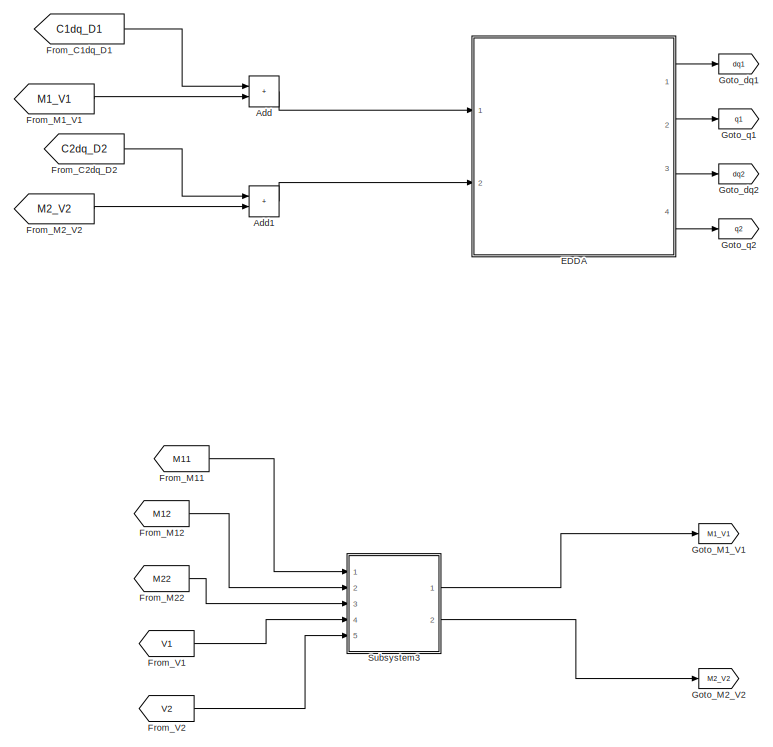
[diagram: root canvas - part 1/3, top left region]
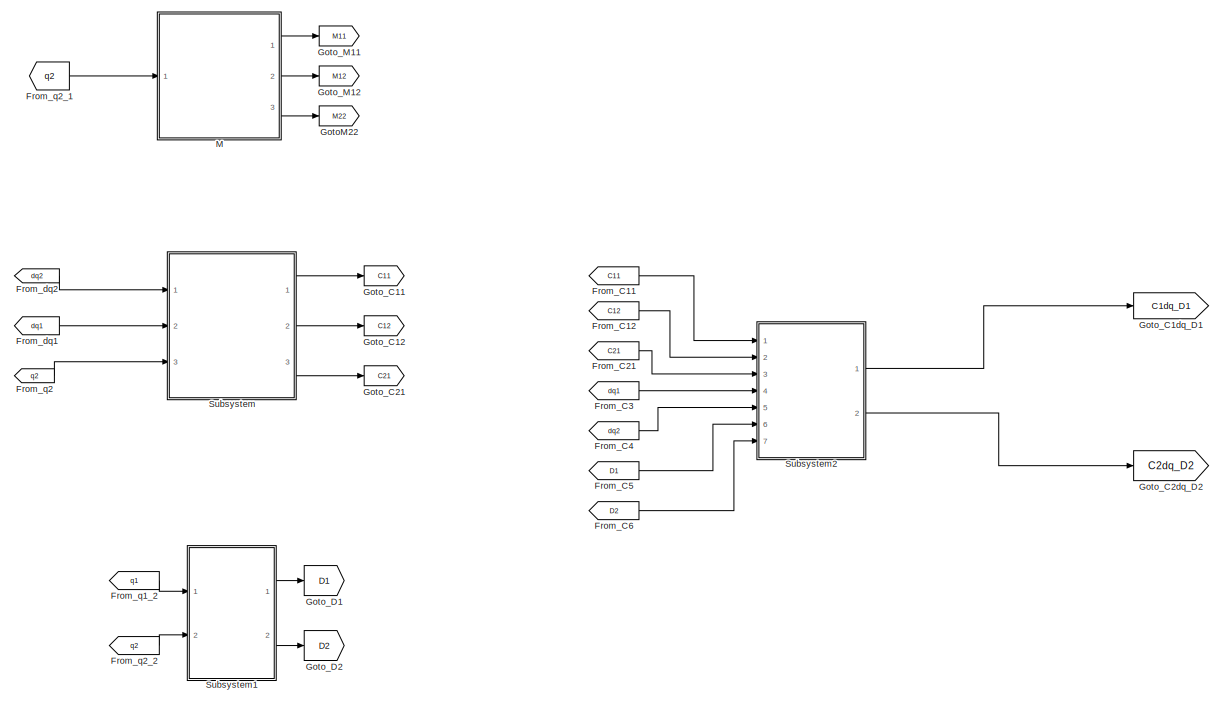
[diagram: root canvas - part 2/3, top right region]
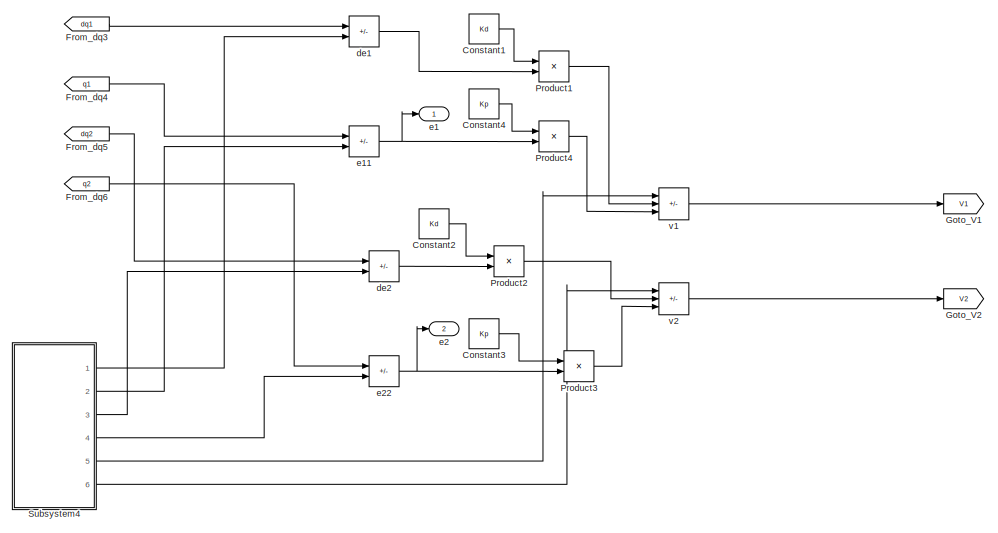
[diagram: root canvas - part 3/3, bottom center region]
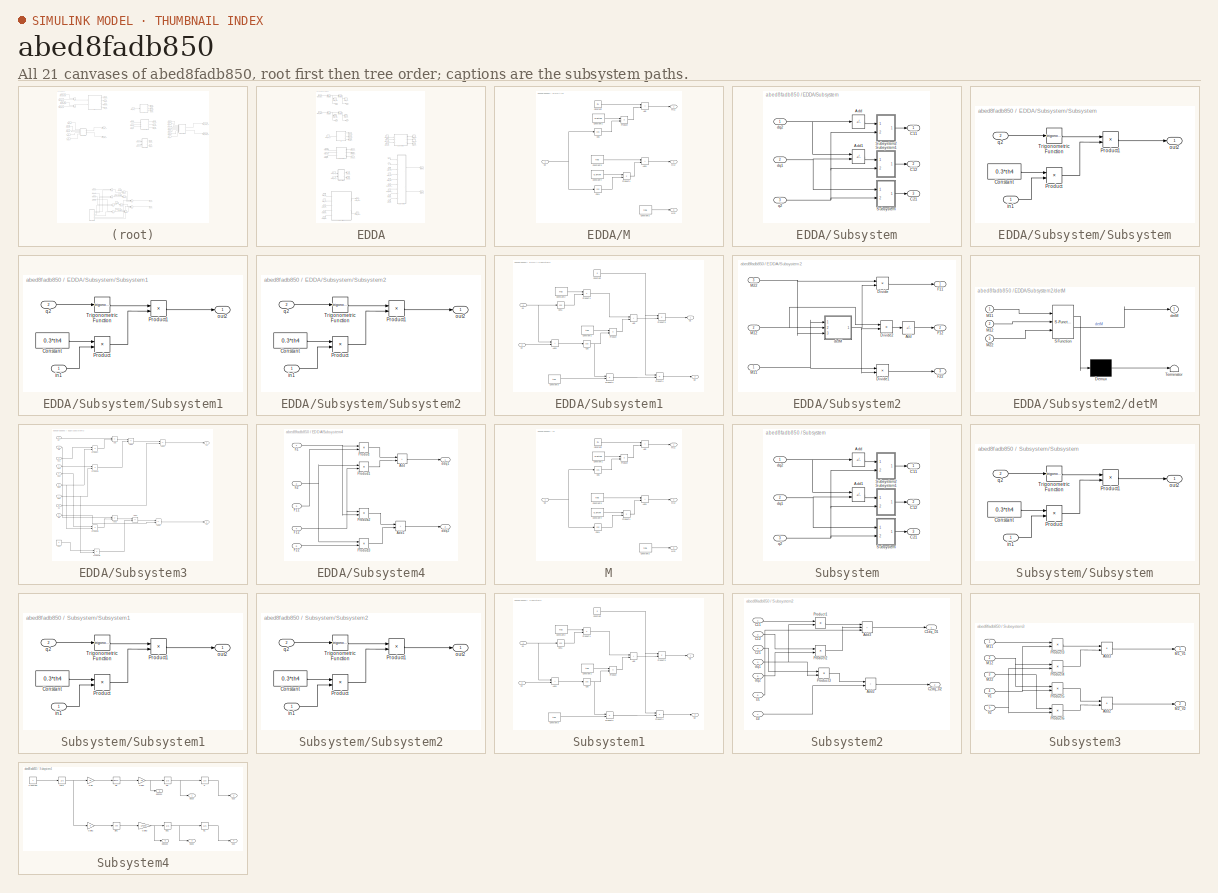
[diagram: thumbnail index - all 21 canvases of the model, root first then tree order]
MODEL slx_abed8fadb850
KIND model
CONFIG AbsTol = auto
CONFIG EnableMultiTasking = off
CONFIG FixedStep = 0.05
CONFIG MaxStep = auto
CONFIG MinStep = auto
CONFIG RelTol = 1e-10
CONFIG SampleTimeConstraint = Unconstrained
CONFIG Solver = ode113
CONFIG SolverName = ode113
CONFIG StartTime = 0.0
CONFIG StopTime = time
BLOCK [Sum] Add
  IconShape = rectangular
  Ports = [2, 1]
BLOCK [Sum] Add1
  IconShape = rectangular
  Ports = [2, 1]
BLOCK [Constant] Constant1
  Value = Kd
BLOCK [Constant] Constant2
  Value = Kd
BLOCK [Constant] Constant3
  Value = Kp
BLOCK [Constant] Constant4
  Value = Kp
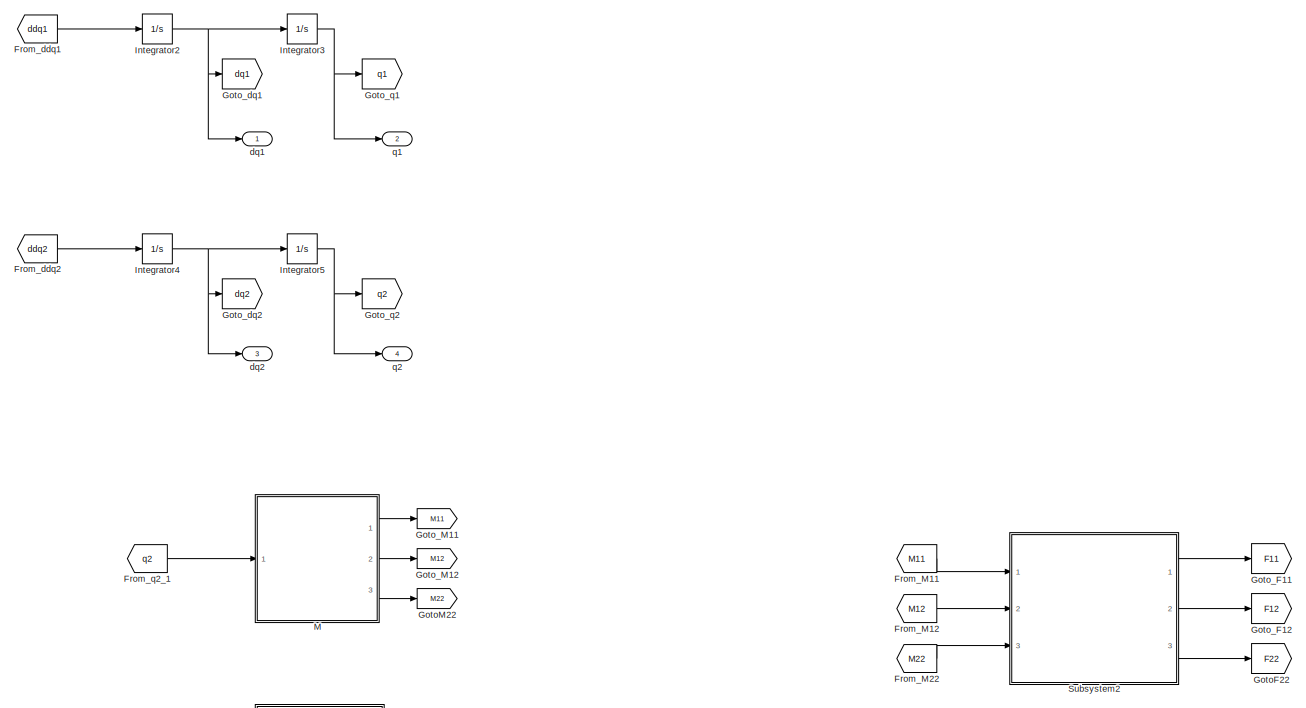
[diagram: EDDA - part 1/3, full width, top band]
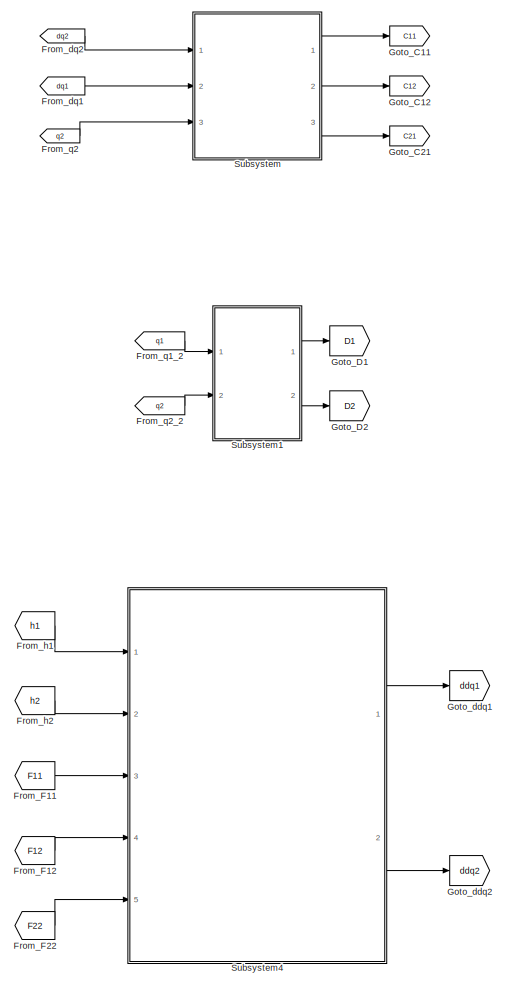
[diagram: EDDA - part 2/3, bottom left region]
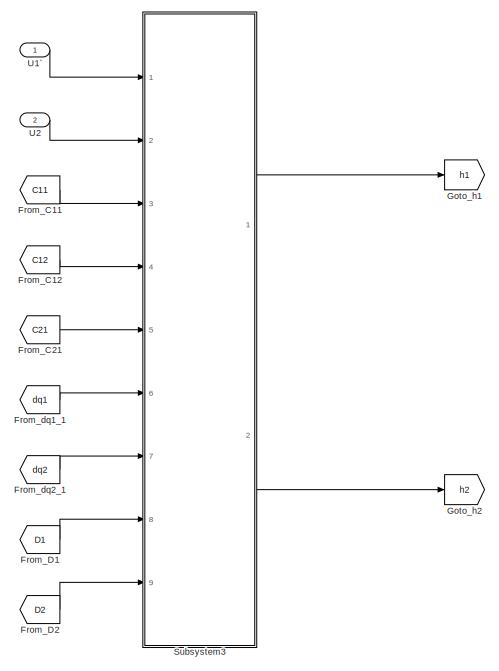
[diagram: EDDA - part 3/3, bottom right region]
BLOCK [SubSystem] EDDA
  Ports = [2, 4]
  RequestExecContextInheritance = off
BLOCK [From] EDDA/From_C11
  GotoTag = C11
BLOCK [From] EDDA/From_C12
  GotoTag = C12
BLOCK [From] EDDA/From_C21
  GotoTag = C21
BLOCK [From] EDDA/From_D1
  GotoTag = D1
BLOCK [From] EDDA/From_D2
  GotoTag = D2
BLOCK [From] EDDA/From_F11
  GotoTag = F11
BLOCK [From] EDDA/From_F12
  GotoTag = F12
BLOCK [From] EDDA/From_F22
  GotoTag = F22
BLOCK [From] EDDA/From_M11
  GotoTag = M11
BLOCK [From] EDDA/From_M12
  GotoTag = M12
BLOCK [From] EDDA/From_M22
  GotoTag = M22
BLOCK [From] EDDA/From_ddq1
  GotoTag = ddq1
BLOCK [From] EDDA/From_ddq2
  GotoTag = ddq2
BLOCK [From] EDDA/From_dq1
  GotoTag = dq1
BLOCK [From] EDDA/From_dq1_1
  GotoTag = dq1
BLOCK [From] EDDA/From_dq2
  GotoTag = dq2
BLOCK [From] EDDA/From_dq2_1
  GotoTag = dq2
BLOCK [From] EDDA/From_h1
  GotoTag = h1
BLOCK [From] EDDA/From_h2
  GotoTag = h2
BLOCK [From] EDDA/From_q1_2
  GotoTag = q1
BLOCK [From] EDDA/From_q2
  GotoTag = q2
BLOCK [From] EDDA/From_q2_1
  GotoTag = q2
BLOCK [From] EDDA/From_q2_2
  GotoTag = q2
BLOCK [Goto] EDDA/GotoF22
  GotoTag = F22
BLOCK [Goto] EDDA/GotoM22
  GotoTag = M22
BLOCK [Goto] EDDA/Goto_C11
  GotoTag = C11
BLOCK [Goto] EDDA/Goto_C12
  GotoTag = C12
BLOCK [Goto] EDDA/Goto_C21
  GotoTag = C21
BLOCK [Goto] EDDA/Goto_D1
  GotoTag = D1
BLOCK [Goto] EDDA/Goto_D2
  GotoTag = D2
BLOCK [Goto] EDDA/Goto_F11
  GotoTag = F11
BLOCK [Goto] EDDA/Goto_F12
  GotoTag = F12
BLOCK [Goto] EDDA/Goto_M11
  GotoTag = M11
BLOCK [Goto] EDDA/Goto_M12
  GotoTag = M12
BLOCK [Goto] EDDA/Goto_ddq1
  GotoTag = ddq1
BLOCK [Goto] EDDA/Goto_ddq2
  GotoTag = ddq2
BLOCK [Goto] EDDA/Goto_dq1
  GotoTag = dq1
BLOCK [Goto] EDDA/Goto_dq2
  GotoTag = dq2
BLOCK [Goto] EDDA/Goto_h1
  GotoTag = h1
BLOCK [Goto] EDDA/Goto_h2
  GotoTag = h2
BLOCK [Goto] EDDA/Goto_q1
  GotoTag = q1
BLOCK [Goto] EDDA/Goto_q2
  GotoTag = q2
BLOCK [Integrator] EDDA/Integrator2
  Ports = [1, 1]
BLOCK [Integrator] EDDA/Integrator3
  Ports = [1, 1]
BLOCK [Integrator] EDDA/Integrator4
  Ports = [1, 1]
BLOCK [Integrator] EDDA/Integrator5
  Ports = [1, 1]
BLOCK [SubSystem] EDDA/M
  Ports = [1, 3]
  RequestExecContextInheritance = off
BLOCK [Sum] EDDA/M/Add
  IconShape = rectangular
  Ports = [2, 1]
BLOCK [Sum] EDDA/M/Add1
  IconShape = rectangular
  Ports = [2, 1]
BLOCK [Constant] EDDA/M/Constant
  Value = th1
BLOCK [Constant] EDDA/M/Constant1
  Value = 0.6*th4
BLOCK [Constant] EDDA/M/Constant2
  Value = th3
BLOCK [Constant] EDDA/M/Constant3
  Value = th3
BLOCK [Constant] EDDA/M/Constant4
  Value = 0.3*th4
BLOCK [Trigonometry] EDDA/M/Cos
  Operator = cos
  Ports = [1, 1]
BLOCK [Trigonometry] EDDA/M/Cos1
  Operator = cos
  Ports = [1, 1]
BLOCK [Outport] EDDA/M/M11
BLOCK [Outport] EDDA/M/M12
  Port = 2
BLOCK [Outport] EDDA/M/M22
  Port = 3
BLOCK [Product] EDDA/M/Product
  Ports = [2, 1]
BLOCK [Product] EDDA/M/Product1
  Ports = [2, 1]
BLOCK [Inport] EDDA/M/q2
BLOCK [SubSystem] EDDA/Subsystem
  Ports = [3, 3]
  RequestExecContextInheritance = off
BLOCK [Sum] EDDA/Subsystem/Add
  IconShape = rectangular
  Inputs = -
  Ports = [1, 1]
BLOCK [Sum] EDDA/Subsystem/Add1
  IconShape = rectangular
  Inputs = --
  Ports = [2, 1]
BLOCK [Outport] EDDA/Subsystem/C11
BLOCK [Outport] EDDA/Subsystem/C12
  Port = 2
BLOCK [Outport] EDDA/Subsystem/C21
  Port = 3
BLOCK [SubSystem] EDDA/Subsystem/Subsystem
  Ports = [2, 1]
  RequestExecContextInheritance = off
BLOCK [Constant] EDDA/Subsystem/Subsystem/Constant
  Value = 0.3*th4
BLOCK [Product] EDDA/Subsystem/Subsystem/Product
  Ports = [2, 1]
BLOCK [Product] EDDA/Subsystem/Subsystem/Product1
  Ports = [2, 1]
BLOCK [Trigonometry] EDDA/Subsystem/Subsystem/Trigonometric Function
  Ports = [1, 1]
BLOCK [Inport] EDDA/Subsystem/Subsystem/in1
BLOCK [Outport] EDDA/Subsystem/Subsystem/out2
BLOCK [Inport] EDDA/Subsystem/Subsystem/q2
  Port = 2
BLOCK [SubSystem] EDDA/Subsystem/Subsystem1
  Ports = [2, 1]
  RequestExecContextInheritance = off
BLOCK [Constant] EDDA/Subsystem/Subsystem1/Constant
  Value = 0.3*th4
BLOCK [Product] EDDA/Subsystem/Subsystem1/Product
  Ports = [2, 1]
BLOCK [Product] EDDA/Subsystem/Subsystem1/Product1
  Ports = [2, 1]
BLOCK [Trigonometry] EDDA/Subsystem/Subsystem1/Trigonometric Function
  Ports = [1, 1]
BLOCK [Inport] EDDA/Subsystem/Subsystem1/in1
BLOCK [Outport] EDDA/Subsystem/Subsystem1/out2
BLOCK [Inport] EDDA/Subsystem/Subsystem1/q2
  Port = 2
BLOCK [SubSystem] EDDA/Subsystem/Subsystem2
  Ports = [2, 1]
  RequestExecContextInheritance = off
BLOCK [Constant] EDDA/Subsystem/Subsystem2/Constant
  Value = 0.3*th4
BLOCK [Product] EDDA/Subsystem/Subsystem2/Product
  Ports = [2, 1]
BLOCK [Product] EDDA/Subsystem/Subsystem2/Product1
  Ports = [2, 1]
BLOCK [Trigonometry] EDDA/Subsystem/Subsystem2/Trigonometric Function
  Ports = [1, 1]
BLOCK [Inport] EDDA/Subsystem/Subsystem2/in1
BLOCK [Outport] EDDA/Subsystem/Subsystem2/out2
BLOCK [Inport] EDDA/Subsystem/Subsystem2/q2
  Port = 2
BLOCK [Inport] EDDA/Subsystem/dq1
  Port = 2
BLOCK [Inport] EDDA/Subsystem/dq2
BLOCK [Inport] EDDA/Subsystem/q2
  Port = 3
BLOCK [SubSystem] EDDA/Subsystem1
  Ports = [2, 2]
  RequestExecContextInheritance = off
BLOCK [Sum] EDDA/Subsystem1/Add
  IconShape = rectangular
  Ports = [2, 1]
BLOCK [Sum] EDDA/Subsystem1/Add1
  IconShape = rectangular
  Ports = [2, 1]
BLOCK [Constant] EDDA/Subsystem1/Constant
  Value = g
BLOCK [Constant] EDDA/Subsystem1/Constant1
  Value = th4
BLOCK [Constant] EDDA/Subsystem1/Constant2
  Value = th2
BLOCK [Constant] EDDA/Subsystem1/Constant3
  Value = th4
BLOCK [Trigonometry] EDDA/Subsystem1/Cos
  Operator = cos
  Ports = [1, 1]
BLOCK [Trigonometry] EDDA/Subsystem1/Cos1
  Operator = cos
  Ports = [1, 1]
BLOCK [Outport] EDDA/Subsystem1/D1
BLOCK [Outport] EDDA/Subsystem1/D2
  Port = 2
BLOCK [Product] EDDA/Subsystem1/Product
  Ports = [2, 1]
BLOCK [Product] EDDA/Subsystem1/Product1
  Ports = [2, 1]
BLOCK [Product] EDDA/Subsystem1/Product2
  Ports = [2, 1]
BLOCK [Product] EDDA/Subsystem1/Product3
  Ports = [2, 1]
BLOCK [Product] EDDA/Subsystem1/Product4
  Ports = [2, 1]
BLOCK [Inport] EDDA/Subsystem1/q1
BLOCK [Inport] EDDA/Subsystem1/q2
  Port = 2
BLOCK [SubSystem] EDDA/Subsystem2
  Ports = [3, 3]
  RequestExecContextInheritance = off
BLOCK [Sum] EDDA/Subsystem2/Add
  IconShape = rectangular
  Inputs = -
  Ports = [1, 1]
BLOCK [Product] EDDA/Subsystem2/Divide
  Inputs = */
  Ports = [2, 1]
BLOCK [Product] EDDA/Subsystem2/Divide1
  Inputs = */
  Ports = [2, 1]
BLOCK [Product] EDDA/Subsystem2/Divide2
  Inputs = */
  Ports = [2, 1]
BLOCK [Outport] EDDA/Subsystem2/F11
BLOCK [Outport] EDDA/Subsystem2/F12
  Port = 2
BLOCK [Outport] EDDA/Subsystem2/F22
  Port = 3
BLOCK [Inport] EDDA/Subsystem2/M11
BLOCK [Inport] EDDA/Subsystem2/M12
  Port = 2
BLOCK [Inport] EDDA/Subsystem2/M22
  Port = 3
BLOCK [SubSystem] EDDA/Subsystem2/detM
  ErrorFcn = Stateflow.Translate.translate
  PermitHierarchicalResolution = ExplicitOnly
  Ports = [3, 1]
  RequestExecContextInheritance = off
  SFBlockType = MATLAB Function
  TreatAsAtomicUnit = on
BLOCK [Demux] EDDA/Subsystem2/detM/ Demux 
  Outputs = 1
  Ports = [1, 1]
BLOCK [S-Function] EDDA/Subsystem2/detM/ SFunction 
  EnableBusSupport = on
  FunctionName = sf_sfun
  PortCounts = [3 2]
  Ports = [3, 2]
  SFcnIsStateOwnerBlock = off
  SFunctionDeploymentMode = off
  Tag = Stateflow S-Function 2
BLOCK [Terminator] EDDA/Subsystem2/detM/ Terminator 
BLOCK [Inport] EDDA/Subsystem2/detM/M11
BLOCK [Inport] EDDA/Subsystem2/detM/M12
  Port = 2
BLOCK [Inport] EDDA/Subsystem2/detM/M22
  Port = 3
BLOCK [Outport] EDDA/Subsystem2/detM/detM
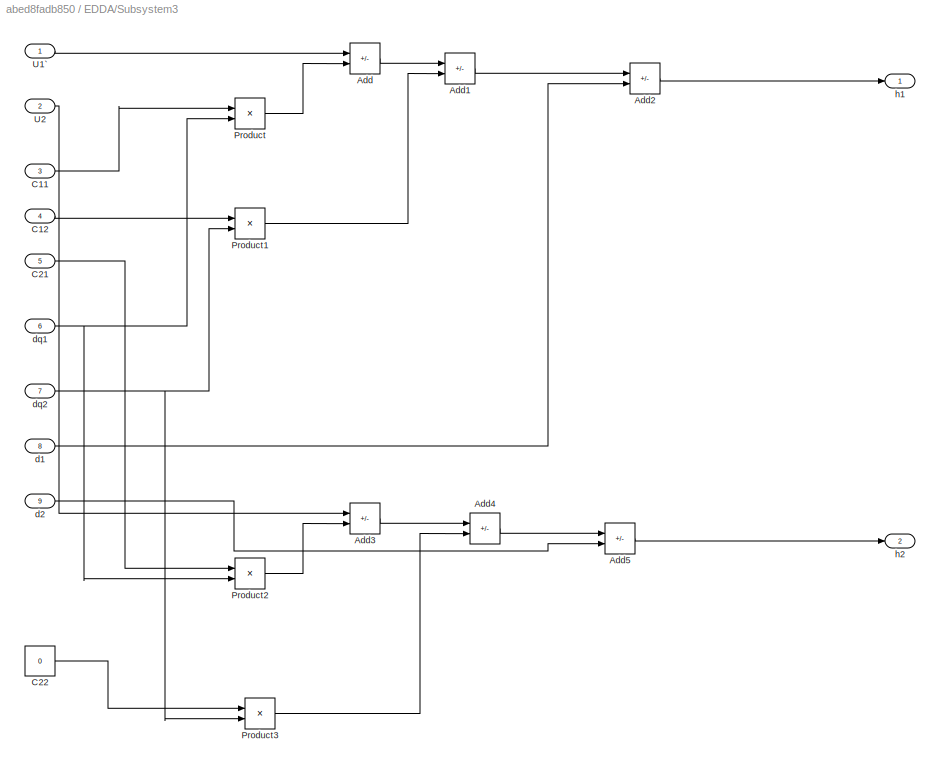
BLOCK [SubSystem] EDDA/Subsystem3
  Ports = [9, 2]
  RequestExecContextInheritance = off
BLOCK [Sum] EDDA/Subsystem3/Add
  IconShape = rectangular
  Inputs = +-
  Ports = [2, 1]
BLOCK [Sum] EDDA/Subsystem3/Add1
  IconShape = rectangular
  Inputs = +-
  Ports = [2, 1]
BLOCK [Sum] EDDA/Subsystem3/Add2
  IconShape = rectangular
  Inputs = +-
  Ports = [2, 1]
BLOCK [Sum] EDDA/Subsystem3/Add3
  IconShape = rectangular
  Inputs = +-
  Ports = [2, 1]
BLOCK [Sum] EDDA/Subsystem3/Add4
  IconShape = rectangular
  Inputs = +-
  Ports = [2, 1]
BLOCK [Sum] EDDA/Subsystem3/Add5
  IconShape = rectangular
  Inputs = +-
  Ports = [2, 1]
BLOCK [Inport] EDDA/Subsystem3/C11
  Port = 3
BLOCK [Inport] EDDA/Subsystem3/C12
  Port = 4
BLOCK [Inport] EDDA/Subsystem3/C21
  Port = 5
BLOCK [Constant] EDDA/Subsystem3/C22
  Value = 0
BLOCK [Product] EDDA/Subsystem3/Product
  Ports = [2, 1]
BLOCK [Product] EDDA/Subsystem3/Product1
  Ports = [2, 1]
BLOCK [Product] EDDA/Subsystem3/Product2
  Ports = [2, 1]
BLOCK [Product] EDDA/Subsystem3/Product3
  Ports = [2, 1]
BLOCK [Inport] EDDA/Subsystem3/U1`
BLOCK [Inport] EDDA/Subsystem3/U2
  Port = 2
BLOCK [Inport] EDDA/Subsystem3/d1
  Port = 8
BLOCK [Inport] EDDA/Subsystem3/d2
  Port = 9
BLOCK [Inport] EDDA/Subsystem3/dq1
  Port = 6
BLOCK [Inport] EDDA/Subsystem3/dq2
  Port = 7
BLOCK [Outport] EDDA/Subsystem3/h1
BLOCK [Outport] EDDA/Subsystem3/h2
  Port = 2
BLOCK [SubSystem] EDDA/Subsystem4
  Ports = [5, 2]
  RequestExecContextInheritance = off
BLOCK [Sum] EDDA/Subsystem4/Add
  IconShape = rectangular
  Ports = [2, 1]
BLOCK [Sum] EDDA/Subsystem4/Add1
  IconShape = rectangular
  Ports = [2, 1]
BLOCK [Inport] EDDA/Subsystem4/F11
  Port = 3
BLOCK [Inport] EDDA/Subsystem4/F12
  Port = 4
BLOCK [Inport] EDDA/Subsystem4/F22
  Port = 5
BLOCK [Product] EDDA/Subsystem4/Product
  Ports = [2, 1]
BLOCK [Product] EDDA/Subsystem4/Product1
  Ports = [2, 1]
BLOCK [Product] EDDA/Subsystem4/Product2
  Ports = [2, 1]
BLOCK [Product] EDDA/Subsystem4/Product3
  Ports = [2, 1]
BLOCK [Outport] EDDA/Subsystem4/ddq1
BLOCK [Outport] EDDA/Subsystem4/ddq2
  Port = 2
BLOCK [Inport] EDDA/Subsystem4/h1
BLOCK [Inport] EDDA/Subsystem4/h2
  Port = 2
BLOCK [Inport] EDDA/U1`
BLOCK [Inport] EDDA/U2
  Port = 2
BLOCK [Outport] EDDA/dq1
BLOCK [Outport] EDDA/dq2
  Port = 3
BLOCK [Outport] EDDA/q1
  Port = 2
BLOCK [Outport] EDDA/q2
  Port = 4
BLOCK [From] From_C11
  GotoTag = C11
BLOCK [From] From_C12
  GotoTag = C12
BLOCK [From] From_C1dq_D1
  GotoTag = C1dq_D1
BLOCK [From] From_C21
  GotoTag = C21
BLOCK [From] From_C2dq_D2
  GotoTag = C2dq_D2
BLOCK [From] From_C3
  GotoTag = dq1
BLOCK [From] From_C4
  GotoTag = dq2
BLOCK [From] From_C5
  GotoTag = D1
BLOCK [From] From_C6
  GotoTag = D2
BLOCK [From] From_M11
  GotoTag = M11
BLOCK [From] From_M12
  GotoTag = M12
BLOCK [From] From_M1_V1
  GotoTag = M1_V1
BLOCK [From] From_M22
  GotoTag = M22
BLOCK [From] From_M2_V2
  GotoTag = M2_V2
BLOCK [From] From_V1
  GotoTag = V1
BLOCK [From] From_V2
  GotoTag = V2
BLOCK [From] From_dq1
  GotoTag = dq1
BLOCK [From] From_dq2
  GotoTag = dq2
BLOCK [From] From_dq3
  GotoTag = dq1
BLOCK [From] From_dq4
  GotoTag = q1
BLOCK [From] From_dq5
  GotoTag = dq2
BLOCK [From] From_dq6
  GotoTag = q2
BLOCK [From] From_q1_2
  GotoTag = q1
BLOCK [From] From_q2
  GotoTag = q2
BLOCK [From] From_q2_1
  GotoTag = q2
BLOCK [From] From_q2_2
  GotoTag = q2
BLOCK [Goto] GotoM22
  GotoTag = M22
BLOCK [Goto] Goto_C11
  GotoTag = C11
BLOCK [Goto] Goto_C12
  GotoTag = C12
BLOCK [Goto] Goto_C1dq_D1
  GotoTag = C1dq_D1
BLOCK [Goto] Goto_C21
  GotoTag = C21
BLOCK [Goto] Goto_C2dq_D2
  GotoTag = C2dq_D2
BLOCK [Goto] Goto_D1
  GotoTag = D1
BLOCK [Goto] Goto_D2
  GotoTag = D2
BLOCK [Goto] Goto_M11
  GotoTag = M11
BLOCK [Goto] Goto_M12
  GotoTag = M12
BLOCK [Goto] Goto_M1_V1
  GotoTag = M1_V1
BLOCK [Goto] Goto_M2_V2
  GotoTag = M2_V2
BLOCK [Goto] Goto_V1
  GotoTag = V1
BLOCK [Goto] Goto_V2
  GotoTag = V2
BLOCK [Goto] Goto_dq1
  GotoTag = dq1
BLOCK [Goto] Goto_dq2
  GotoTag = dq2
BLOCK [Goto] Goto_q1
  GotoTag = q1
BLOCK [Goto] Goto_q2
  GotoTag = q2
BLOCK [SubSystem] M
  Ports = [1, 3]
  RequestExecContextInheritance = off
BLOCK [Sum] M/Add
  IconShape = rectangular
  Ports = [2, 1]
BLOCK [Sum] M/Add1
  IconShape = rectangular
  Ports = [2, 1]
BLOCK [Constant] M/Constant
  Value = th1
BLOCK [Constant] M/Constant1
  Value = 0.6*th4
BLOCK [Constant] M/Constant2
  Value = th3
BLOCK [Constant] M/Constant3
  Value = th3
BLOCK [Constant] M/Constant4
  Value = 0.3*th4
BLOCK [Trigonometry] M/Cos
  Operator = cos
  Ports = [1, 1]
BLOCK [Trigonometry] M/Cos1
  Operator = cos
  Ports = [1, 1]
BLOCK [Outport] M/M11
BLOCK [Outport] M/M12
  Port = 2
BLOCK [Outport] M/M22
  Port = 3
BLOCK [Product] M/Product
  Ports = [2, 1]
BLOCK [Product] M/Product1
  Ports = [2, 1]
BLOCK [Inport] M/q2
BLOCK [Product] Product1
  Ports = [2, 1]
BLOCK [Product] Product2
  Ports = [2, 1]
BLOCK [Product] Product3
  Ports = [2, 1]
BLOCK [Product] Product4
  Ports = [2, 1]
BLOCK [SubSystem] Subsystem
  Ports = [3, 3]
  RequestExecContextInheritance = off
BLOCK [Sum] Subsystem/Add
  IconShape = rectangular
  Inputs = -
  Ports = [1, 1]
BLOCK [Sum] Subsystem/Add1
  IconShape = rectangular
  Inputs = --
  Ports = [2, 1]
BLOCK [Outport] Subsystem/C11
BLOCK [Outport] Subsystem/C12
  Port = 2
BLOCK [Outport] Subsystem/C21
  Port = 3
BLOCK [SubSystem] Subsystem/Subsystem
  Ports = [2, 1]
  RequestExecContextInheritance = off
BLOCK [Constant] Subsystem/Subsystem/Constant
  Value = 0.3*th4
BLOCK [Product] Subsystem/Subsystem/Product
  Ports = [2, 1]
BLOCK [Product] Subsystem/Subsystem/Product1
  Ports = [2, 1]
BLOCK [Trigonometry] Subsystem/Subsystem/Trigonometric Function
  Ports = [1, 1]
BLOCK [Inport] Subsystem/Subsystem/in1
BLOCK [Outport] Subsystem/Subsystem/out2
BLOCK [Inport] Subsystem/Subsystem/q2
  Port = 2
BLOCK [SubSystem] Subsystem/Subsystem1
  Ports = [2, 1]
  RequestExecContextInheritance = off
BLOCK [Constant] Subsystem/Subsystem1/Constant
  Value = 0.3*th4
BLOCK [Product] Subsystem/Subsystem1/Product
  Ports = [2, 1]
BLOCK [Product] Subsystem/Subsystem1/Product1
  Ports = [2, 1]
BLOCK [Trigonometry] Subsystem/Subsystem1/Trigonometric Function
  Ports = [1, 1]
BLOCK [Inport] Subsystem/Subsystem1/in1
BLOCK [Outport] Subsystem/Subsystem1/out2
BLOCK [Inport] Subsystem/Subsystem1/q2
  Port = 2
BLOCK [SubSystem] Subsystem/Subsystem2
  Ports = [2, 1]
  RequestExecContextInheritance = off
BLOCK [Constant] Subsystem/Subsystem2/Constant
  Value = 0.3*th4
BLOCK [Product] Subsystem/Subsystem2/Product
  Ports = [2, 1]
BLOCK [Product] Subsystem/Subsystem2/Product1
  Ports = [2, 1]
BLOCK [Trigonometry] Subsystem/Subsystem2/Trigonometric Function
  Ports = [1, 1]
BLOCK [Inport] Subsystem/Subsystem2/in1
BLOCK [Outport] Subsystem/Subsystem2/out2
BLOCK [Inport] Subsystem/Subsystem2/q2
  Port = 2
BLOCK [Inport] Subsystem/dq1
  Port = 2
BLOCK [Inport] Subsystem/dq2
BLOCK [Inport] Subsystem/q2
  Port = 3
BLOCK [SubSystem] Subsystem1
  Ports = [2, 2]
  RequestExecContextInheritance = off
BLOCK [Sum] Subsystem1/Add
  IconShape = rectangular
  Ports = [2, 1]
BLOCK [Sum] Subsystem1/Add1
  IconShape = rectangular
  Ports = [2, 1]
BLOCK [Constant] Subsystem1/Constant
  Value = g
BLOCK [Constant] Subsystem1/Constant1
  Value = th4
BLOCK [Constant] Subsystem1/Constant2
  Value = th2
BLOCK [Constant] Subsystem1/Constant3
  Value = th4
BLOCK [Trigonometry] Subsystem1/Cos
  Operator = cos
  Ports = [1, 1]
BLOCK [Trigonometry] Subsystem1/Cos1
  Operator = cos
  Ports = [1, 1]
BLOCK [Outport] Subsystem1/D1
BLOCK [Outport] Subsystem1/D2
  Port = 2
BLOCK [Product] Subsystem1/Product
  Ports = [2, 1]
BLOCK [Product] Subsystem1/Product1
  Ports = [2, 1]
BLOCK [Product] Subsystem1/Product2
  Ports = [2, 1]
BLOCK [Product] Subsystem1/Product3
  Ports = [2, 1]
BLOCK [Product] Subsystem1/Product4
  Ports = [2, 1]
BLOCK [Inport] Subsystem1/q1
BLOCK [Inport] Subsystem1/q2
  Port = 2
BLOCK [SubSystem] Subsystem2
  Ports = [7, 2]
  RequestExecContextInheritance = off
BLOCK [Sum] Subsystem2/Add2
  IconShape = rectangular
  Ports = [2, 1]
BLOCK [Sum] Subsystem2/Add3
  IconShape = rectangular
  Inputs = +++
  Ports = [3, 1]
BLOCK [Inport] Subsystem2/C11
BLOCK [Inport] Subsystem2/C12
  Port = 2
BLOCK [Outport] Subsystem2/C1dq_D1
BLOCK [Inport] Subsystem2/C21
  Port = 3
BLOCK [Outport] Subsystem2/C2dq_D2
  Port = 2
BLOCK [Inport] Subsystem2/D1
  Port = 6
BLOCK [Inport] Subsystem2/D2
  Port = 7
BLOCK [Product] Subsystem2/Product1
  Ports = [2, 1]
BLOCK [Product] Subsystem2/Product2
  Ports = [2, 1]
BLOCK [Product] Subsystem2/Product3
  Ports = [2, 1]
BLOCK [Inport] Subsystem2/dq1
  Port = 4
BLOCK [Inport] Subsystem2/dq2
  Port = 5
BLOCK [SubSystem] Subsystem3
  Ports = [5, 2]
  RequestExecContextInheritance = off
BLOCK [Sum] Subsystem3/Add2
  IconShape = rectangular
  Ports = [2, 1]
BLOCK [Sum] Subsystem3/Add3
  IconShape = rectangular
  Ports = [2, 1]
BLOCK [Inport] Subsystem3/M11
BLOCK [Inport] Subsystem3/M12
  Port = 2
BLOCK [Outport] Subsystem3/M1_V1
BLOCK [Inport] Subsystem3/M22
  Port = 3
BLOCK [Outport] Subsystem3/M2_V2
  Port = 2
BLOCK [Product] Subsystem3/Product3
  Ports = [2, 1]
BLOCK [Product] Subsystem3/Product4
  Ports = [2, 1]
BLOCK [Product] Subsystem3/Product5
  Ports = [2, 1]
BLOCK [Product] Subsystem3/Product6
  Ports = [2, 1]
BLOCK [Inport] Subsystem3/V1
  Port = 4
BLOCK [Inport] Subsystem3/V2
  Port = 5
BLOCK [SubSystem] Subsystem4
  Ports = [0, 6]
  RequestExecContextInheritance = off
BLOCK [Constant] Subsystem4/Constant
BLOCK [Gain] Subsystem4/Gain
  Gain = 1/2
BLOCK [Gain] Subsystem4/Gain1
  Gain = -1/8
BLOCK [Gain] Subsystem4/Gain2
  Gain = 9
BLOCK [Gain] Subsystem4/Gain3
  Gain = -2*9*9
BLOCK [Trigonometry] Subsystem4/Sin
  Ports = [1, 1]
BLOCK [Trigonometry] Subsystem4/Sin1
  Operator = cos
  Ports = [1, 1]
BLOCK [Integrator] Subsystem4/d
  Ports = [1, 1]
BLOCK [Integrator] Subsystem4/d1
  InitialCondition = 2
  Ports = [1, 1]
BLOCK [Integrator] Subsystem4/dd
  InitialCondition = 1/4
  Ports = [1, 1]
BLOCK [Integrator] Subsystem4/dd1
  Ports = [1, 1]
BLOCK [Outport] Subsystem4/ddq1d1
  Port = 5
BLOCK [Outport] Subsystem4/ddq1d2
  Port = 6
BLOCK [Outport] Subsystem4/dq1d
BLOCK [Outport] Subsystem4/dq2d
  Port = 3
BLOCK [Outport] Subsystem4/q1d
  Port = 2
BLOCK [Outport] Subsystem4/q2d
  Port = 4
BLOCK [Integrator] Subsystem4/time
  Ports = [1, 1]
BLOCK [Sum] de1
  IconShape = rectangular
  Inputs = +-
  Ports = [2, 1]
BLOCK [Sum] de2
  IconShape = rectangular
  Inputs = +-
  Ports = [2, 1]
BLOCK [Outport] e1
BLOCK [Sum] e11
  IconShape = rectangular
  Inputs = +-
  Ports = [2, 1]
BLOCK [Outport] e2
  Port = 2
BLOCK [Sum] e22
  IconShape = rectangular
  Inputs = +-
  Ports = [2, 1]
BLOCK [Sum] v1
  IconShape = rectangular
  Inputs = +--
  Ports = [3, 1]
BLOCK [Sum] v2
  IconShape = rectangular
  Inputs = +--
  Ports = [3, 1]
LINE Add1:1 -> EDDA:2
LINE Add:1 -> EDDA:1
LINE Constant1:1 -> Product1:1
LINE Constant2:1 -> Product2:1
LINE Constant3:1 -> Product3:1
LINE Constant4:1 -> Product4:1
LINE EDDA/From_C11:1 -> EDDA/Subsystem3:3
LINE EDDA/From_C12:1 -> EDDA/Subsystem3:4
LINE EDDA/From_C21:1 -> EDDA/Subsystem3:5
LINE EDDA/From_D1:1 -> EDDA/Subsystem3:8
LINE EDDA/From_D2:1 -> EDDA/Subsystem3:9
LINE EDDA/From_F11:1 -> EDDA/Subsystem4:3
LINE EDDA/From_F12:1 -> EDDA/Subsystem4:4
LINE EDDA/From_F22:1 -> EDDA/Subsystem4:5
LINE EDDA/From_M11:1 -> EDDA/Subsystem2:1
LINE EDDA/From_M12:1 -> EDDA/Subsystem2:2
LINE EDDA/From_M22:1 -> EDDA/Subsystem2:3
LINE EDDA/From_ddq1:1 -> EDDA/Integrator2:1
LINE EDDA/From_ddq2:1 -> EDDA/Integrator4:1
LINE EDDA/From_dq1:1 -> EDDA/Subsystem:2
LINE EDDA/From_dq1_1:1 -> EDDA/Subsystem3:6
LINE EDDA/From_dq2:1 -> EDDA/Subsystem:1
LINE EDDA/From_dq2_1:1 -> EDDA/Subsystem3:7
LINE EDDA/From_h1:1 -> EDDA/Subsystem4:1
LINE EDDA/From_h2:1 -> EDDA/Subsystem4:2
LINE EDDA/From_q1_2:1 -> EDDA/Subsystem1:1
LINE EDDA/From_q2:1 -> EDDA/Subsystem:3
LINE EDDA/From_q2_1:1 -> EDDA/M:1
LINE EDDA/From_q2_2:1 -> EDDA/Subsystem1:2
NET EDDA/Integrator2:1 -> EDDA/Goto_dq1:1, EDDA/Integrator3:1, EDDA/dq1:1
NET EDDA/Integrator3:1 -> EDDA/Goto_q1:1, EDDA/q1:1
NET EDDA/Integrator4:1 -> EDDA/Goto_dq2:1, EDDA/Integrator5:1, EDDA/dq2:1
NET EDDA/Integrator5:1 -> EDDA/Goto_q2:1, EDDA/q2:1
LINE EDDA/M/Add1:1 -> EDDA/M/M12:1
LINE EDDA/M/Add:1 -> EDDA/M/M11:1
LINE EDDA/M/Constant1:1 -> EDDA/M/Product:1
LINE EDDA/M/Constant2:1 -> EDDA/M/M22:1
LINE EDDA/M/Constant3:1 -> EDDA/M/Add1:1
LINE EDDA/M/Constant4:1 -> EDDA/M/Product1:1
LINE EDDA/M/Constant:1 -> EDDA/M/Add:1
LINE EDDA/M/Cos1:1 -> EDDA/M/Product1:2
LINE EDDA/M/Cos:1 -> EDDA/M/Product:2
LINE EDDA/M/Product1:1 -> EDDA/M/Add1:2
LINE EDDA/M/Product:1 -> EDDA/M/Add:2
NET EDDA/M/q2:1 -> EDDA/M/Cos1:1, EDDA/M/Cos:1
LINE EDDA/M:1 -> EDDA/Goto_M11:1
LINE EDDA/M:2 -> EDDA/Goto_M12:1
LINE EDDA/M:3 -> EDDA/GotoM22:1
LINE EDDA/Subsystem/Add1:1 -> EDDA/Subsystem/Subsystem1:1
LINE EDDA/Subsystem/Add:1 -> EDDA/Subsystem/Subsystem2:1
LINE EDDA/Subsystem/Subsystem/Constant:1 -> EDDA/Subsystem/Subsystem/Product:1
LINE EDDA/Subsystem/Subsystem/Product1:1 -> EDDA/Subsystem/Subsystem/out2:1
LINE EDDA/Subsystem/Subsystem/Product:1 -> EDDA/Subsystem/Subsystem/Product1:2
LINE EDDA/Subsystem/Subsystem/Trigonometric Function:1 -> EDDA/Subsystem/Subsystem/Product1:1
LINE EDDA/Subsystem/Subsystem/in1:1 -> EDDA/Subsystem/Subsystem/Product:2
LINE EDDA/Subsystem/Subsystem/q2:1 -> EDDA/Subsystem/Subsystem/Trigonometric Function:1
LINE EDDA/Subsystem/Subsystem1/Constant:1 -> EDDA/Subsystem/Subsystem1/Product:1
LINE EDDA/Subsystem/Subsystem1/Product1:1 -> EDDA/Subsystem/Subsystem1/out2:1
LINE EDDA/Subsystem/Subsystem1/Product:1 -> EDDA/Subsystem/Subsystem1/Product1:2
LINE EDDA/Subsystem/Subsystem1/Trigonometric Function:1 -> EDDA/Subsystem/Subsystem1/Product1:1
LINE EDDA/Subsystem/Subsystem1/in1:1 -> EDDA/Subsystem/Subsystem1/Product:2
LINE EDDA/Subsystem/Subsystem1/q2:1 -> EDDA/Subsystem/Subsystem1/Trigonometric Function:1
LINE EDDA/Subsystem/Subsystem1:1 -> EDDA/Subsystem/C12:1
LINE EDDA/Subsystem/Subsystem2/Constant:1 -> EDDA/Subsystem/Subsystem2/Product:1
LINE EDDA/Subsystem/Subsystem2/Product1:1 -> EDDA/Subsystem/Subsystem2/out2:1
LINE EDDA/Subsystem/Subsystem2/Product:1 -> EDDA/Subsystem/Subsystem2/Product1:2
LINE EDDA/Subsystem/Subsystem2/Trigonometric Function:1 -> EDDA/Subsystem/Subsystem2/Product1:1
LINE EDDA/Subsystem/Subsystem2/in1:1 -> EDDA/Subsystem/Subsystem2/Product:2
LINE EDDA/Subsystem/Subsystem2/q2:1 -> EDDA/Subsystem/Subsystem2/Trigonometric Function:1
LINE EDDA/Subsystem/Subsystem2:1 -> EDDA/Subsystem/C11:1
LINE EDDA/Subsystem/Subsystem:1 -> EDDA/Subsystem/C21:1
NET EDDA/Subsystem/dq1:1 -> EDDA/Subsystem/Add1:2, EDDA/Subsystem/Subsystem:1
NET EDDA/Subsystem/dq2:1 -> EDDA/Subsystem/Add1:1, EDDA/Subsystem/Add:1
NET EDDA/Subsystem/q2:1 -> EDDA/Subsystem/Subsystem1:2, EDDA/Subsystem/Subsystem2:2, EDDA/Subsystem/Subsystem:2
LINE EDDA/Subsystem1/Add1:1 -> EDDA/Subsystem1/Cos:1
LINE EDDA/Subsystem1/Add:1 -> EDDA/Subsystem1/Product3:2
LINE EDDA/Subsystem1/Constant1:1 -> EDDA/Subsystem1/Product:1
LINE EDDA/Subsystem1/Constant2:1 -> EDDA/Subsystem1/Product1:1
LINE EDDA/Subsystem1/Constant3:1 -> EDDA/Subsystem1/Product2:2
NET EDDA/Subsystem1/Constant:1 -> EDDA/Subsystem1/Product3:1, EDDA/Subsystem1/Product4:1
LINE EDDA/Subsystem1/Cos1:1 -> EDDA/Subsystem1/Product1:2
NET EDDA/Subsystem1/Cos:1 -> EDDA/Subsystem1/Product2:1, EDDA/Subsystem1/Product:2
LINE EDDA/Subsystem1/Product1:1 -> EDDA/Subsystem1/Add:1
LINE EDDA/Subsystem1/Product2:1 -> EDDA/Subsystem1/Product4:2
LINE EDDA/Subsystem1/Product3:1 -> EDDA/Subsystem1/D1:1
LINE EDDA/Subsystem1/Product4:1 -> EDDA/Subsystem1/D2:1
LINE EDDA/Subsystem1/Product:1 -> EDDA/Subsystem1/Add:2
NET EDDA/Subsystem1/q1:1 -> EDDA/Subsystem1/Add1:1, EDDA/Subsystem1/Cos1:1
LINE EDDA/Subsystem1/q2:1 -> EDDA/Subsystem1/Add1:2
LINE EDDA/Subsystem1:1 -> EDDA/Goto_D1:1
LINE EDDA/Subsystem1:2 -> EDDA/Goto_D2:1
LINE EDDA/Subsystem2/Add:1 -> EDDA/Subsystem2/F12:1
LINE EDDA/Subsystem2/Divide1:1 -> EDDA/Subsystem2/F22:1
LINE EDDA/Subsystem2/Divide2:1 -> EDDA/Subsystem2/Add:1
LINE EDDA/Subsystem2/Divide:1 -> EDDA/Subsystem2/F11:1
NET EDDA/Subsystem2/M11:1 -> EDDA/Subsystem2/Divide1:1, EDDA/Subsystem2/detM:1
NET EDDA/Subsystem2/M12:1 -> EDDA/Subsystem2/Divide2:1, EDDA/Subsystem2/detM:2
NET EDDA/Subsystem2/M22:1 -> EDDA/Subsystem2/Divide:1, EDDA/Subsystem2/detM:3
NET EDDA/Subsystem2/detM:1 -> EDDA/Subsystem2/Divide1:2, EDDA/Subsystem2/Divide2:2, EDDA/Subsystem2/Divide:2
LINE EDDA/Subsystem2:1 -> EDDA/Goto_F11:1
LINE EDDA/Subsystem2:2 -> EDDA/Goto_F12:1
LINE EDDA/Subsystem2:3 -> EDDA/GotoF22:1
LINE EDDA/Subsystem3/Add1:1 -> EDDA/Subsystem3/Add2:1
LINE EDDA/Subsystem3/Add2:1 -> EDDA/Subsystem3/h1:1
LINE EDDA/Subsystem3/Add3:1 -> EDDA/Subsystem3/Add4:1
LINE EDDA/Subsystem3/Add4:1 -> EDDA/Subsystem3/Add5:1
LINE EDDA/Subsystem3/Add5:1 -> EDDA/Subsystem3/h2:1
LINE EDDA/Subsystem3/Add:1 -> EDDA/Subsystem3/Add1:1
LINE EDDA/Subsystem3/C11:1 -> EDDA/Subsystem3/Product:1
LINE EDDA/Subsystem3/C12:1 -> EDDA/Subsystem3/Product1:1
LINE EDDA/Subsystem3/C21:1 -> EDDA/Subsystem3/Product2:1
LINE EDDA/Subsystem3/C22:1 -> EDDA/Subsystem3/Product3:1
LINE EDDA/Subsystem3/Product1:1 -> EDDA/Subsystem3/Add1:2
LINE EDDA/Subsystem3/Product2:1 -> EDDA/Subsystem3/Add3:2
LINE EDDA/Subsystem3/Product3:1 -> EDDA/Subsystem3/Add4:2
LINE EDDA/Subsystem3/Product:1 -> EDDA/Subsystem3/Add:2
LINE EDDA/Subsystem3/U1`:1 -> EDDA/Subsystem3/Add:1
LINE EDDA/Subsystem3/U2:1 -> EDDA/Subsystem3/Add3:1
LINE EDDA/Subsystem3/d1:1 -> EDDA/Subsystem3/Add2:2
LINE EDDA/Subsystem3/d2:1 -> EDDA/Subsystem3/Add5:2
NET EDDA/Subsystem3/dq1:1 -> EDDA/Subsystem3/Product2:2, EDDA/Subsystem3/Product:2
NET EDDA/Subsystem3/dq2:1 -> EDDA/Subsystem3/Product1:2, EDDA/Subsystem3/Product3:2
LINE EDDA/Subsystem3:1 -> EDDA/Goto_h1:1
LINE EDDA/Subsystem3:2 -> EDDA/Goto_h2:1
LINE EDDA/Subsystem4/Add1:1 -> EDDA/Subsystem4/ddq2:1
LINE EDDA/Subsystem4/Add:1 -> EDDA/Subsystem4/ddq1:1
LINE EDDA/Subsystem4/F11:1 -> EDDA/Subsystem4/Product:2
NET EDDA/Subsystem4/F12:1 -> EDDA/Subsystem4/Product1:2, EDDA/Subsystem4/Product2:1
LINE EDDA/Subsystem4/F22:1 -> EDDA/Subsystem4/Product3:2
LINE EDDA/Subsystem4/Product1:1 -> EDDA/Subsystem4/Add:2
LINE EDDA/Subsystem4/Product2:1 -> EDDA/Subsystem4/Add1:1
LINE EDDA/Subsystem4/Product3:1 -> EDDA/Subsystem4/Add1:2
LINE EDDA/Subsystem4/Product:1 -> EDDA/Subsystem4/Add:1
NET EDDA/Subsystem4/h1:1 -> EDDA/Subsystem4/Product2:2, EDDA/Subsystem4/Product:1
NET EDDA/Subsystem4/h2:1 -> EDDA/Subsystem4/Product1:1, EDDA/Subsystem4/Product3:1
LINE EDDA/Subsystem4:1 -> EDDA/Goto_ddq1:1
LINE EDDA/Subsystem4:2 -> EDDA/Goto_ddq2:1
LINE EDDA/Subsystem:1 -> EDDA/Goto_C11:1
LINE EDDA/Subsystem:2 -> EDDA/Goto_C12:1
LINE EDDA/Subsystem:3 -> EDDA/Goto_C21:1
LINE EDDA/U1`:1 -> EDDA/Subsystem3:1
LINE EDDA/U2:1 -> EDDA/Subsystem3:2
LINE EDDA:1 -> Goto_dq1:1
LINE EDDA:2 -> Goto_q1:1
LINE EDDA:3 -> Goto_dq2:1
LINE EDDA:4 -> Goto_q2:1
LINE From_C11:1 -> Subsystem2:1
LINE From_C12:1 -> Subsystem2:2
LINE From_C1dq_D1:1 -> Add:1
LINE From_C21:1 -> Subsystem2:3
LINE From_C2dq_D2:1 -> Add1:1
LINE From_C3:1 -> Subsystem2:4
LINE From_C4:1 -> Subsystem2:5
LINE From_C5:1 -> Subsystem2:6
LINE From_C6:1 -> Subsystem2:7
LINE From_M11:1 -> Subsystem3:1
LINE From_M12:1 -> Subsystem3:2
LINE From_M1_V1:1 -> Add:2
LINE From_M22:1 -> Subsystem3:3
LINE From_M2_V2:1 -> Add1:2
LINE From_V1:1 -> Subsystem3:4
LINE From_V2:1 -> Subsystem3:5
LINE From_dq1:1 -> Subsystem:2
LINE From_dq2:1 -> Subsystem:1
LINE From_dq3:1 -> de1:1
LINE From_dq4:1 -> e11:1
LINE From_dq5:1 -> de2:1
LINE From_dq6:1 -> e22:1
LINE From_q1_2:1 -> Subsystem1:1
LINE From_q2:1 -> Subsystem:3
LINE From_q2_1:1 -> M:1
LINE From_q2_2:1 -> Subsystem1:2
LINE M/Add1:1 -> M/M12:1
LINE M/Add:1 -> M/M11:1
LINE M/Constant1:1 -> M/Product:1
LINE M/Constant2:1 -> M/M22:1
LINE M/Constant3:1 -> M/Add1:1
LINE M/Constant4:1 -> M/Product1:1
LINE M/Constant:1 -> M/Add:1
LINE M/Cos1:1 -> M/Product1:2
LINE M/Cos:1 -> M/Product:2
LINE M/Product1:1 -> M/Add1:2
LINE M/Product:1 -> M/Add:2
NET M/q2:1 -> M/Cos1:1, M/Cos:1
LINE M:1 -> Goto_M11:1
LINE M:2 -> Goto_M12:1
LINE M:3 -> GotoM22:1
LINE Product1:1 -> v1:2
LINE Product2:1 -> v2:2
LINE Product3:1 -> v2:3
LINE Product4:1 -> v1:3
LINE Subsystem/Add1:1 -> Subsystem/Subsystem1:1
LINE Subsystem/Add:1 -> Subsystem/Subsystem2:1
LINE Subsystem/Subsystem/Constant:1 -> Subsystem/Subsystem/Product:1
LINE Subsystem/Subsystem/Product1:1 -> Subsystem/Subsystem/out2:1
LINE Subsystem/Subsystem/Product:1 -> Subsystem/Subsystem/Product1:2
LINE Subsystem/Subsystem/Trigonometric Function:1 -> Subsystem/Subsystem/Product1:1
LINE Subsystem/Subsystem/in1:1 -> Subsystem/Subsystem/Product:2
LINE Subsystem/Subsystem/q2:1 -> Subsystem/Subsystem/Trigonometric Function:1
LINE Subsystem/Subsystem1/Constant:1 -> Subsystem/Subsystem1/Product:1
LINE Subsystem/Subsystem1/Product1:1 -> Subsystem/Subsystem1/out2:1
LINE Subsystem/Subsystem1/Product:1 -> Subsystem/Subsystem1/Product1:2
LINE Subsystem/Subsystem1/Trigonometric Function:1 -> Subsystem/Subsystem1/Product1:1
LINE Subsystem/Subsystem1/in1:1 -> Subsystem/Subsystem1/Product:2
LINE Subsystem/Subsystem1/q2:1 -> Subsystem/Subsystem1/Trigonometric Function:1
LINE Subsystem/Subsystem1:1 -> Subsystem/C12:1
LINE Subsystem/Subsystem2/Constant:1 -> Subsystem/Subsystem2/Product:1
LINE Subsystem/Subsystem2/Product1:1 -> Subsystem/Subsystem2/out2:1
LINE Subsystem/Subsystem2/Product:1 -> Subsystem/Subsystem2/Product1:2
LINE Subsystem/Subsystem2/Trigonometric Function:1 -> Subsystem/Subsystem2/Product1:1
LINE Subsystem/Subsystem2/in1:1 -> Subsystem/Subsystem2/Product:2
LINE Subsystem/Subsystem2/q2:1 -> Subsystem/Subsystem2/Trigonometric Function:1
LINE Subsystem/Subsystem2:1 -> Subsystem/C11:1
LINE Subsystem/Subsystem:1 -> Subsystem/C21:1
NET Subsystem/dq1:1 -> Subsystem/Add1:2, Subsystem/Subsystem:1
NET Subsystem/dq2:1 -> Subsystem/Add1:1, Subsystem/Add:1
NET Subsystem/q2:1 -> Subsystem/Subsystem1:2, Subsystem/Subsystem2:2, Subsystem/Subsystem:2
LINE Subsystem1/Add1:1 -> Subsystem1/Cos:1
LINE Subsystem1/Add:1 -> Subsystem1/Product3:2
LINE Subsystem1/Constant1:1 -> Subsystem1/Product:1
LINE Subsystem1/Constant2:1 -> Subsystem1/Product1:1
LINE Subsystem1/Constant3:1 -> Subsystem1/Product2:2
NET Subsystem1/Constant:1 -> Subsystem1/Product3:1, Subsystem1/Product4:1
LINE Subsystem1/Cos1:1 -> Subsystem1/Product1:2
NET Subsystem1/Cos:1 -> Subsystem1/Product2:1, Subsystem1/Product:2
LINE Subsystem1/Product1:1 -> Subsystem1/Add:1
LINE Subsystem1/Product2:1 -> Subsystem1/Product4:2
LINE Subsystem1/Product3:1 -> Subsystem1/D1:1
LINE Subsystem1/Product4:1 -> Subsystem1/D2:1
LINE Subsystem1/Product:1 -> Subsystem1/Add:2
NET Subsystem1/q1:1 -> Subsystem1/Add1:1, Subsystem1/Cos1:1
LINE Subsystem1/q2:1 -> Subsystem1/Add1:2
LINE Subsystem1:1 -> Goto_D1:1
LINE Subsystem1:2 -> Goto_D2:1
LINE Subsystem2/Add2:1 -> Subsystem2/C2dq_D2:1
LINE Subsystem2/Add3:1 -> Subsystem2/C1dq_D1:1
LINE Subsystem2/C11:1 -> Subsystem2/Product1:1
LINE Subsystem2/C12:1 -> Subsystem2/Product2:1
LINE Subsystem2/C21:1 -> Subsystem2/Product3:1
LINE Subsystem2/D1:1 -> Subsystem2/Add3:3
LINE Subsystem2/D2:1 -> Subsystem2/Add2:2
LINE Subsystem2/Product1:1 -> Subsystem2/Add3:1
LINE Subsystem2/Product2:1 -> Subsystem2/Add3:2
LINE Subsystem2/Product3:1 -> Subsystem2/Add2:1
NET Subsystem2/dq1:1 -> Subsystem2/Product1:2, Subsystem2/Product3:2
LINE Subsystem2/dq2:1 -> Subsystem2/Product2:2
LINE Subsystem2:1 -> Goto_C1dq_D1:1
LINE Subsystem2:2 -> Goto_C2dq_D2:1
LINE Subsystem3/Add2:1 -> Subsystem3/M2_V2:1
LINE Subsystem3/Add3:1 -> Subsystem3/M1_V1:1
LINE Subsystem3/M11:1 -> Subsystem3/Product3:1
NET Subsystem3/M12:1 -> Subsystem3/Product4:1, Subsystem3/Product5:1
LINE Subsystem3/M22:1 -> Subsystem3/Product6:1
LINE Subsystem3/Product3:1 -> Subsystem3/Add3:1
LINE Subsystem3/Product4:1 -> Subsystem3/Add3:2
LINE Subsystem3/Product5:1 -> Subsystem3/Add2:1
LINE Subsystem3/Product6:1 -> Subsystem3/Add2:2
NET Subsystem3/V1:1 -> Subsystem3/Product3:2, Subsystem3/Product5:2
NET Subsystem3/V2:1 -> Subsystem3/Product4:2, Subsystem3/Product6:2
LINE Subsystem3:1 -> Goto_M1_V1:1
LINE Subsystem3:2 -> Goto_M2_V2:1
LINE Subsystem4/Constant:1 -> Subsystem4/time:1
NET Subsystem4/Gain1:1 -> Subsystem4/dd:1, Subsystem4/ddq1d1:1
LINE Subsystem4/Gain2:1 -> Subsystem4/Sin1:1
NET Subsystem4/Gain3:1 -> Subsystem4/dd1:1, Subsystem4/ddq1d2:1
LINE Subsystem4/Gain:1 -> Subsystem4/Sin:1
LINE Subsystem4/Sin1:1 -> Subsystem4/Gain3:1
LINE Subsystem4/Sin:1 -> Subsystem4/Gain1:1
LINE Subsystem4/d1:1 -> Subsystem4/q2d:1
LINE Subsystem4/d:1 -> Subsystem4/q1d:1
NET Subsystem4/dd1:1 -> Subsystem4/d1:1, Subsystem4/dq2d:1
NET Subsystem4/dd:1 -> Subsystem4/d:1, Subsystem4/dq1d:1
NET Subsystem4/time:1 -> Subsystem4/Gain2:1, Subsystem4/Gain:1
LINE Subsystem4:1 -> de1:2
LINE Subsystem4:2 -> e11:2
LINE Subsystem4:3 -> de2:2
LINE Subsystem4:4 -> e22:2
LINE Subsystem4:5 -> v1:1
LINE Subsystem4:6 -> v2:1
LINE Subsystem:1 -> Goto_C11:1
LINE Subsystem:2 -> Goto_C12:1
LINE Subsystem:3 -> Goto_C21:1
LINE de1:1 -> Product1:2
LINE de2:1 -> Product2:2
NET e11:1 -> Product4:2, e1:1
NET e22:1 -> Product3:2, e2:1
LINE v1:1 -> Goto_V1:1
LINE v2:1 -> Goto_V2:1
note: NET lines group one-source signal fan-out (src -> all destinations, sorted); 1:1 wires keep LINE
CHART EDDA/Subsystem2/detM states=1 transitions=1
  STATE_LABEL 'eML_blk_kernel()'
  STATE_LABEL 'SCRIPT:\nfunction detM = fcn(M11, M12, M22)\n\ndetM = (M11*M22)-(M12^2);\n'
CHART  states=0 transitions=0
